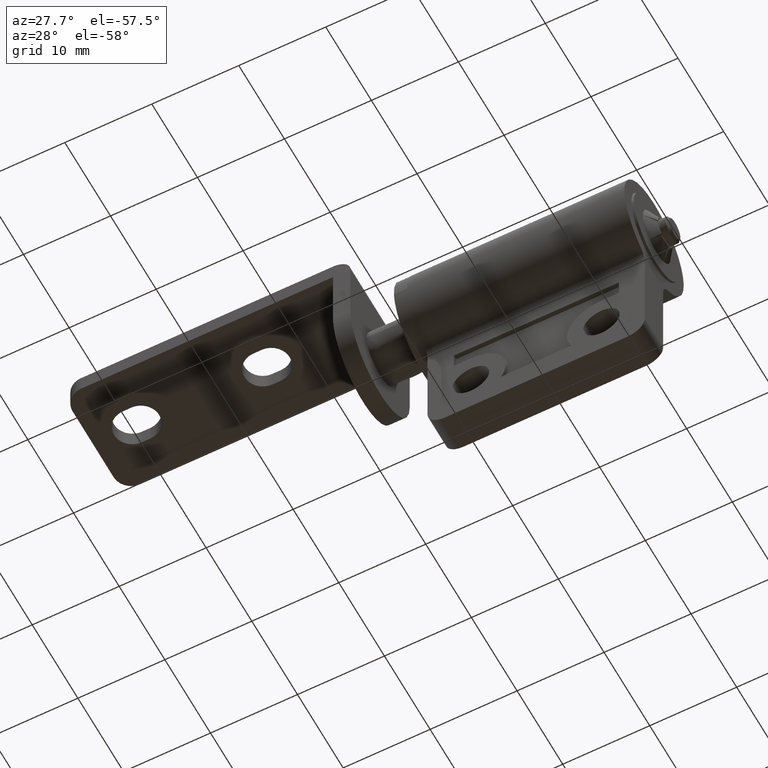
[diagram: clean part render]
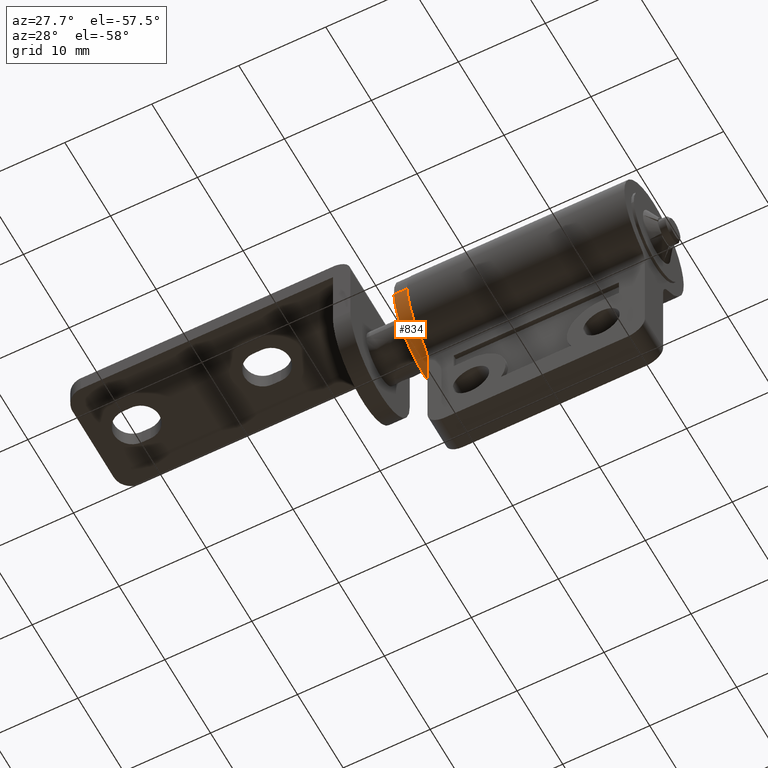
[diagram: same view with one face highlighted and labeled with its STEP entity id]
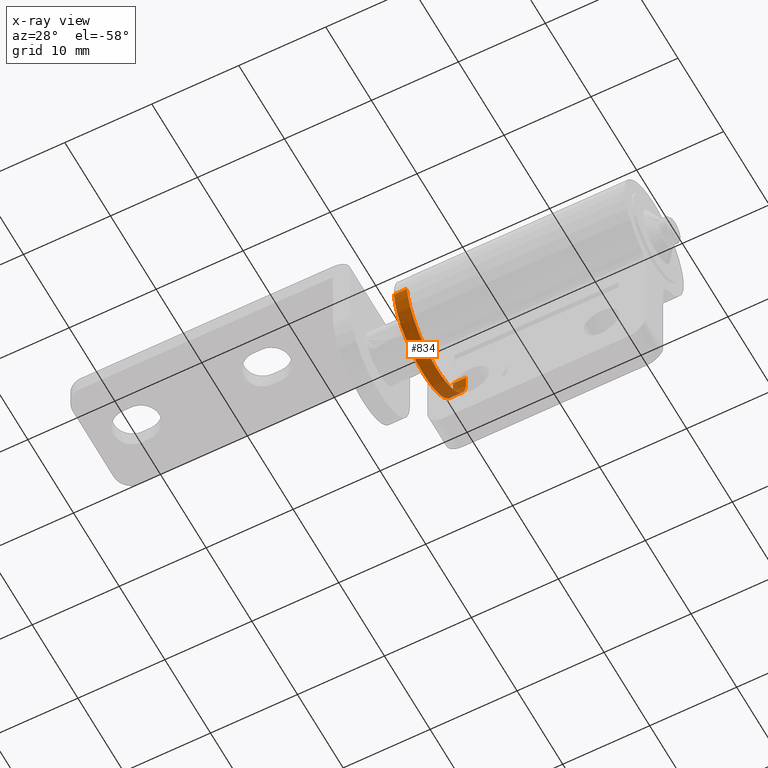
[diagram: x-ray of the same camera — body ghosted, the highlighted face saturated]
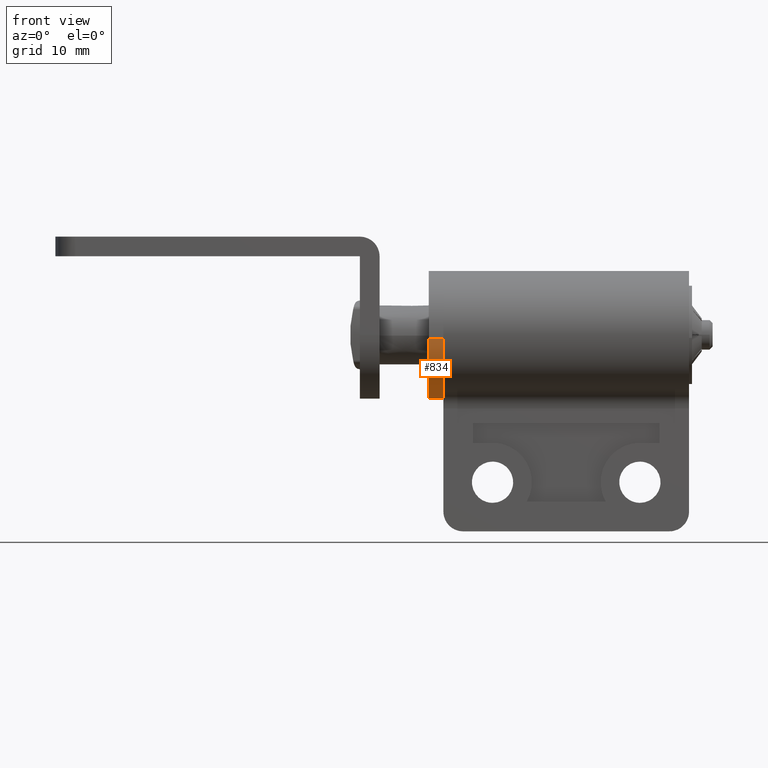
[diagram: same view with one face highlighted and labeled with its STEP entity id]
A machine part, auxiliary view. The second image highlights one B-rep face of the part: STEP entity #834.
The next image is the same camera in x-ray: the body ghosted, the highlighted face saturated — about 22% of this face is hidden behind the body in this view.
A second angle (front view) of the same face is appended — the face is thin or edge-on in the first view.
In plain terms, the highlighted face is a freeform B-spline surface patch.
Its self-contained STEP definition (entity closure, byte-faithful):
#732=CARTESIAN_POINT('',(6.537500000000002,6.454561921363831,0.767222525268930));
#733=CARTESIAN_POINT('',(6.537500000000001,6.476519500415936,0.582495736146855));
#734=CARTESIAN_POINT('',(6.537500000000001,6.487876189742133,0.396815506976570));
#735=CARTESIAN_POINT('',(6.537500000000002,6.884691696718703,-6.091060682765563));
#736=CARTESIAN_POINT('',(6.537500000000001,0.396815506976570,-6.487876189742133));
#737=CARTESIAN_POINT('',(6.537500000000002,-6.091060682765563,-6.884691696718703));
#738=CARTESIAN_POINT('',(6.537500000000001,-6.487876189742133,-0.396815506976570));
#739=CARTESIAN_POINT('',(4.961562500000000,6.454561921363831,0.767222525268930));
#740=CARTESIAN_POINT('',(4.961562500000000,6.476519500415936,0.582495736146855));
#741=CARTESIAN_POINT('',(4.961562499999999,6.487876189742133,0.396815506976570));
#742=CARTESIAN_POINT('',(4.961562500000000,6.884691696718703,-6.091060682765563));
#743=CARTESIAN_POINT('',(4.961562499999999,0.396815506976570,-6.487876189742133));
#744=CARTESIAN_POINT('',(4.961562500000000,-6.091060682765563,-6.884691696718703));
#745=CARTESIAN_POINT('',(4.961562499999999,-6.487876189742133,-0.396815506976570));
#753=(BOUNDED_SURFACE()B_SPLINE_SURFACE(2,1,((#732,#739),(#733,#740),(#734,#741),(#735,#742),(#736,#743),(#737,#744),(#738,#745)),.UNSPECIFIED.,.F.,.F.,.U.)B_SPLINE_SURFACE_WITH_KNOTS((3,2,2,3),(2,2),(0.0,0.430782104868019,11.200334726568490,21.969887348268959),(0.0,1.0),.UNSPECIFIED.)GEOMETRIC_REPRESENTATION_ITEM()RATIONAL_B_SPLINE_SURFACE(((0.977505800795127,0.977505800795127),(0.988284271247462,0.988284271247462),(1.0,1.0),(0.707106781186548,0.707106781186548),(1.0,1.0),(0.707106781186548,0.707106781186548),(1.0,1.0)))REPRESENTATION_ITEM('')SURFACE());
#754=CARTESIAN_POINT('',(5.000000000000370,6.454562670800373,0.767216220286062));
#755=VERTEX_POINT('',#754);
#756=CARTESIAN_POINT('',(5.0,0.0,-6.500000000000000));
#757=VERTEX_POINT('',#756);
#758=CARTESIAN_POINT('',(5.000000000000370,6.454562670800373,0.767216220286062));
#759=CARTESIAN_POINT('',(5.0,6.499999999999999,0.384953591918707));
#760=CARTESIAN_POINT('',(5.0,6.500000000000000,0.0));
#761=CARTESIAN_POINT('',(4.999999999999999,6.500000000000000,-6.500000000000000));
#762=CARTESIAN_POINT('',(5.0,0.0,-6.500000000000000));
#770=(BOUNDED_CURVE()B_SPLINE_CURVE(2,(#758,#759,#760,#761,#762),.UNSPECIFIED.,.F.,.U.)B_SPLINE_CURVE_WITH_KNOTS((3,2,3),(0.229562638602395,0.250000000000000,0.500000000000000),.UNSPECIFIED.)CURVE()GEOMETRIC_REPRESENTATION_ITEM()RATIONAL_B_SPLINE_CURVE((0.956027077764928,0.976056141744806,1.0,0.707106781186547,1.0))REPRESENTATION_ITEM(''));
#771=EDGE_CURVE('',#755,#757,#770,.T.);
#772=ORIENTED_EDGE('',*,*,#771,.F.);
#773=CARTESIAN_POINT('',(6.500000000000000,6.454562661569460,0.767216297946046));
#774=VERTEX_POINT('',#773);
#775=CARTESIAN_POINT('',(6.500000000000000,6.454562661569460,0.767216297946046));
#776=CARTESIAN_POINT('',(5.000000000000370,6.454562670800373,0.767216220286062));
#777=QUASI_UNIFORM_CURVE('',1,(#775,#776),.UNSPECIFIED.,.F.,.U.);
#778=EDGE_CURVE('',#774,#755,#777,.T.);
#779=ORIENTED_EDGE('',*,*,#778,.F.);
#780=CARTESIAN_POINT('',(6.500000000000000,0.0,-6.500000000000000));
#781=VERTEX_POINT('',#780);
#782=CARTESIAN_POINT('',(6.500000000000000,6.454562661569461,0.767216297946046));
#783=CARTESIAN_POINT('',(6.500000000000001,6.500000000000001,0.384953631159193));
#784=CARTESIAN_POINT('',(6.500000000000000,6.500000000000000,0.0));
#785=CARTESIAN_POINT('',(6.500000000000000,6.500000000000000,-6.500000000000000));
#786=CARTESIAN_POINT('',(6.500000000000000,0.0,-6.500000000000000));
#794=(BOUNDED_CURVE()B_SPLINE_CURVE(2,(#782,#783,#784,#785,#786),.UNSPECIFIED.,.F.,.U.)B_SPLINE_CURVE_WITH_KNOTS((3,2,3),(0.229562636568982,0.250000000000000,0.500000000000000),.UNSPECIFIED.)CURVE()GEOMETRIC_REPRESENTATION_ITEM()RATIONAL_B_SPLINE_CURVE((0.956027073779349,0.976056139362515,1.0,0.707106781186547,1.0))REPRESENTATION_ITEM(''));
#795=EDGE_CURVE('',#774,#781,#794,.T.);
#796=ORIENTED_EDGE('',*,*,#795,.T.);
#797=CARTESIAN_POINT('',(6.500000000000000,-6.487876189739234,-0.396815507023985));
#798=VERTEX_POINT('',#797);
#799=CARTESIAN_POINT('',(6.500000000000000,0.0,-6.500000000000000));
#800=CARTESIAN_POINT('',(6.500000000000001,-6.114589434797497,-6.500000000000001));
#801=CARTESIAN_POINT('',(6.500000000000000,-6.487876189739234,-0.396815507023985));
#809=(BOUNDED_CURVE()B_SPLINE_CURVE(2,(#799,#800,#801),.UNSPECIFIED.,.F.,.U.)B_SPLINE_CURVE_WITH_KNOTS((3,3),(0.500000000000000,0.739332962239447),.UNSPECIFIED.)CURVE()GEOMETRIC_REPRESENTATION_ITEM()RATIONAL_B_SPLINE_CURVE((1.0,0.719603993286120,0.976072041667798))REPRESENTATION_ITEM(''));
#810=EDGE_CURVE('',#781,#798,#809,.T.);
#811=ORIENTED_EDGE('',*,*,#810,.T.);
#812=CARTESIAN_POINT('',(5.0,-6.487876189739234,-0.396815507023985));
#813=VERTEX_POINT('',#812);
#814=CARTESIAN_POINT('',(6.500000000000000,-6.487876189739234,-0.396815507023985));
#815=CARTESIAN_POINT('',(5.0,-6.487876189739234,-0.396815507023985));
#816=QUASI_UNIFORM_CURVE('',1,(#814,#815),.UNSPECIFIED.,.F.,.U.);
#817=EDGE_CURVE('',#798,#813,#816,.T.);
#818=ORIENTED_EDGE('',*,*,#817,.T.);
#819=CARTESIAN_POINT('',(5.0,0.0,-6.500000000000000));
#820=CARTESIAN_POINT('',(4.999999999999999,-6.114589434797497,-6.500000000000001));
#821=CARTESIAN_POINT('',(5.0,-6.487876189739234,-0.396815507023985));
#829=(BOUNDED_CURVE()B_SPLINE_CURVE(2,(#819,#820,#821),.UNSPECIFIED.,.F.,.U.)B_SPLINE_CURVE_WITH_KNOTS((3,3),(0.500000000000000,0.739332962239447),.UNSPECIFIED.)CURVE()GEOMETRIC_REPRESENTATION_ITEM()RATIONAL_B_SPLINE_CURVE((1.0,0.719603993286120,0.976072041667798))REPRESENTATION_ITEM(''));
#830=EDGE_CURVE('',#757,#813,#829,.T.);
#831=ORIENTED_EDGE('',*,*,#830,.F.);
#832=EDGE_LOOP('',(#772,#779,#796,#811,#818,#831));
#833=FACE_OUTER_BOUND('',#832,.T.);
#834=ADVANCED_FACE('',(#833),#753,.T.);